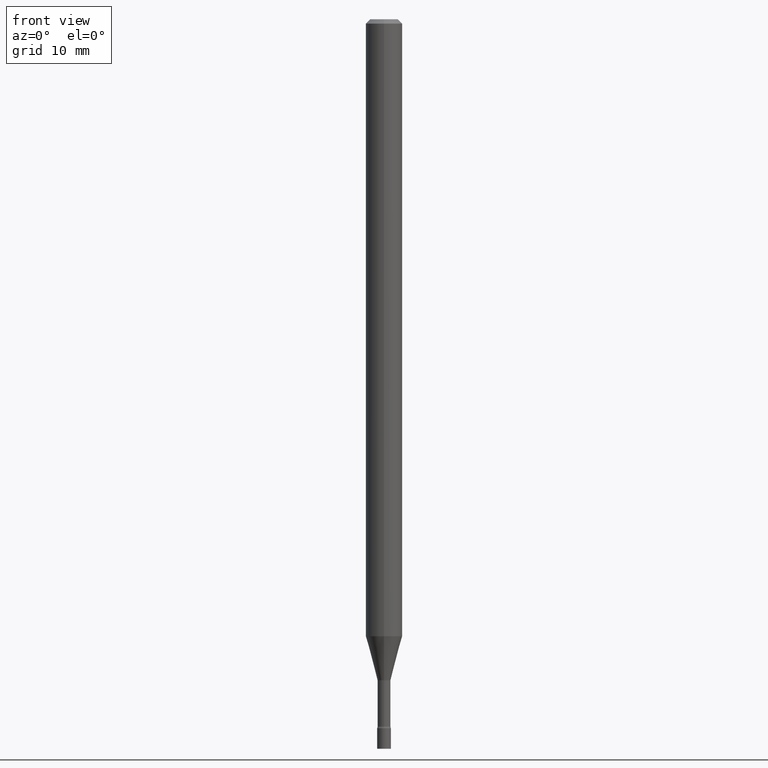
[diagram: clean part render]
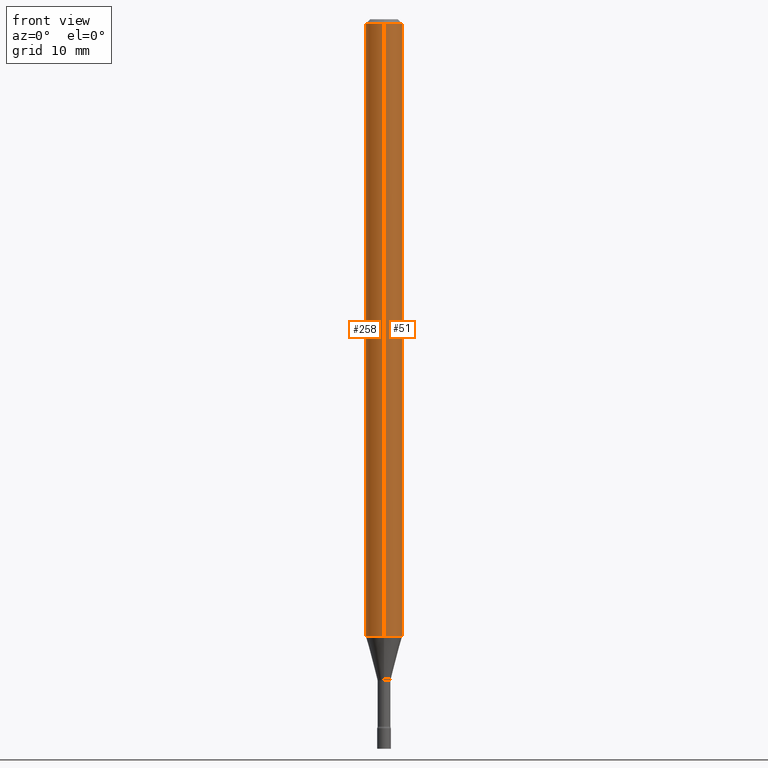
[diagram: same view with one multi-face feature highlighted, each face labeled with its STEP entity id]
A machine part, front view. The highlighted faces form ONE feature: a constant-radius fillet chain: 2 tangent blend faces with common blend radius 1.5875 mm. The faces share edges in the B-rep.
Their STEP definitions:
[1] entity #258 (Cylinder):
#4 = CARTESIAN_POINT ( 'NONE',  ( 4.440892098501140893E-16, 0.06249999999999258926, -2.114225147374217961 ) ) ;
#10 = FACE_OUTER_BOUND ( 'NONE', #309, .T. ) ;
#15 = EDGE_CURVE ( 'NONE', #400, #444, #18, .T. ) ;
#18 = LINE ( 'NONE', #461, #106 ) ;
#55 = DIRECTION ( 'NONE',  ( -2.445456510120580117E-29, 3.491498947507439183E-15, 1.000000000000000000 ) ) ;
#69 = ORIENTED_EDGE ( 'NONE', *, *, #483, .F. ) ;
#106 = VECTOR ( 'NONE', #176, 39.37007874015748143 ) ;
#125 = DIRECTION ( 'NONE',  ( -2.445456510120580117E-29, 3.491498947507439183E-15, 1.000000000000000000 ) ) ;
#129 = CIRCLE ( 'NONE', #161, 0.06250000000000000000 ) ;
#137 = DIRECTION ( 'NONE',  ( -6.982962677686265922E-15, -1.000000000000000000, 4.370956789862821150E-15 ) ) ;
#154 = ORIENTED_EDGE ( 'NONE', *, *, #15, .F. ) ;
#161 = AXIS2_PLACEMENT_3D ( 'NONE', #374, #501, #137 ) ;
#176 = DIRECTION ( 'NONE',  ( -2.445456510120580117E-29, 3.491498947507438789E-15, 1.000000000000000000 ) ) ;
#197 = AXIS2_PLACEMENT_3D ( 'NONE', #492, #125, #367 ) ;
#215 = AXIS2_PLACEMENT_3D ( 'NONE', #325, #55, #286 ) ;
#218 = EDGE_CURVE ( 'NONE', #400, #319, #129, .T. ) ;
#227 = ORIENTED_EDGE ( 'NONE', *, *, #218, .T. ) ;
#229 = DIRECTION ( 'NONE',  ( -2.445456510120580117E-29, 3.491498947507438789E-15, 1.000000000000000000 ) ) ;
#252 = VECTOR ( 'NONE', #229, 39.37007874015748143 ) ;
#258 = ADVANCED_FACE ( 'NONE', ( #10 ), #323, .T. ) ;
#261 = LINE ( 'NONE', #431, #252 ) ;
#286 = DIRECTION ( 'NONE',  ( -6.982962677686265922E-15, -1.000000000000000000, 3.483106191921935554E-15 ) ) ;
#303 = CARTESIAN_POINT ( 'NONE',  ( 4.440892098501146810E-16, 0.06249999999999995837, -0.01500000000000024751 ) ) ;
#309 = EDGE_LOOP ( 'NONE', ( #154, #227, #447, #69 ) ) ;
#319 = VERTEX_POINT ( 'NONE', #511 ) ;
#323 = CYLINDRICAL_SURFACE ( 'NONE', #197, 0.06250000000000000000 ) ;
#325 = CARTESIAN_POINT ( 'NONE',  ( 3.668184765180877041E-31, -5.237248421261169202E-17, -0.01500000000000003067 ) ) ;
#367 = DIRECTION ( 'NONE',  ( -6.982962677686265922E-15, -1.000000000000000000, 3.491498947507438789E-15 ) ) ;
#374 = CARTESIAN_POINT ( 'NONE',  ( 5.170245650506924061E-29, -7.381814876850842660E-15, -2.114225147374217961 ) ) ;
#386 = VERTEX_POINT ( 'NONE', #473 ) ;
#400 = VERTEX_POINT ( 'NONE', #4 ) ;
#431 = CARTESIAN_POINT ( 'NONE',  ( -4.364351673553916201E-16, -0.06250000000000000000, 2.182186842192149243E-16 ) ) ;
#444 = VERTEX_POINT ( 'NONE', #303 ) ;
#447 = ORIENTED_EDGE ( 'NONE', *, *, #459, .T. ) ;
#455 = CIRCLE ( 'NONE', #215, 0.06250000000000000000 ) ;
#459 = EDGE_CURVE ( 'NONE', #319, #386, #261, .T. ) ;
#461 = CARTESIAN_POINT ( 'NONE',  ( 4.440892098500625669E-16, 0.06250000000000000000, -2.182186842192149243E-16 ) ) ;
#473 = CARTESIAN_POINT ( 'NONE',  ( -4.364351673553912750E-16, -0.06250000000000005551, -0.01499999999999981209 ) ) ;
#483 = EDGE_CURVE ( 'NONE', #444, #386, #455, .T. ) ;
#492 = CARTESIAN_POINT ( 'NONE',  ( 0.000000000000000000, 0.000000000000000000, 0.000000000000000000 ) ) ;
#501 = DIRECTION ( 'NONE',  ( -2.445456510120580117E-29, 3.491498947507439183E-15, 1.000000000000000000 ) ) ;
#511 = CARTESIAN_POINT ( 'NONE',  ( -4.364351673553400976E-16, -0.06250000000000741074, -2.114225147374217517 ) ) ;
[2] entity #51 (Cylinder):
#4 = CARTESIAN_POINT ( 'NONE',  ( 4.440892098501140893E-16, 0.06249999999999258926, -2.114225147374217961 ) ) ;
#15 = EDGE_CURVE ( 'NONE', #400, #444, #18, .T. ) ;
#18 = LINE ( 'NONE', #461, #106 ) ;
#51 = ADVANCED_FACE ( 'NONE', ( #513 ), #200, .T. ) ;
#61 = AXIS2_PLACEMENT_3D ( 'NONE', #195, #311, #345 ) ;
#88 = CIRCLE ( 'NONE', #151, 0.06250000000000000000 ) ;
#99 = CIRCLE ( 'NONE', #188, 0.06250000000000000000 ) ;
#106 = VECTOR ( 'NONE', #176, 39.37007874015748143 ) ;
#109 = EDGE_CURVE ( 'NONE', #319, #400, #88, .T. ) ;
#127 = CARTESIAN_POINT ( 'NONE',  ( 5.170245650506924061E-29, -7.381814876850842660E-15, -2.114225147374217961 ) ) ;
#151 = AXIS2_PLACEMENT_3D ( 'NONE', #127, #217, #164 ) ;
#164 = DIRECTION ( 'NONE',  ( -6.982962677686265922E-15, -1.000000000000000000, 4.370956789862821150E-15 ) ) ;
#176 = DIRECTION ( 'NONE',  ( -2.445456510120580117E-29, 3.491498947507438789E-15, 1.000000000000000000 ) ) ;
#188 = AXIS2_PLACEMENT_3D ( 'NONE', #241, #364, #287 ) ;
#195 = CARTESIAN_POINT ( 'NONE',  ( 0.000000000000000000, 0.000000000000000000, 0.000000000000000000 ) ) ;
#200 = CYLINDRICAL_SURFACE ( 'NONE', #61, 0.06250000000000000000 ) ;
#217 = DIRECTION ( 'NONE',  ( -2.445456510120580117E-29, 3.491498947507439183E-15, 1.000000000000000000 ) ) ;
#229 = DIRECTION ( 'NONE',  ( -2.445456510120580117E-29, 3.491498947507438789E-15, 1.000000000000000000 ) ) ;
#233 = ORIENTED_EDGE ( 'NONE', *, *, #109, .T. ) ;
#241 = CARTESIAN_POINT ( 'NONE',  ( 3.668184765180877041E-31, -5.237248421261169202E-17, -0.01500000000000003067 ) ) ;
#252 = VECTOR ( 'NONE', #229, 39.37007874015748143 ) ;
#253 = EDGE_CURVE ( 'NONE', #386, #444, #99, .T. ) ;
#261 = LINE ( 'NONE', #431, #252 ) ;
#287 = DIRECTION ( 'NONE',  ( -6.982962677686265922E-15, -1.000000000000000000, 3.483106191921935554E-15 ) ) ;
#303 = CARTESIAN_POINT ( 'NONE',  ( 4.440892098501146810E-16, 0.06249999999999995837, -0.01500000000000024751 ) ) ;
#311 = DIRECTION ( 'NONE',  ( -2.445456510120580117E-29, 3.491498947507439183E-15, 1.000000000000000000 ) ) ;
#319 = VERTEX_POINT ( 'NONE', #511 ) ;
#344 = ORIENTED_EDGE ( 'NONE', *, *, #253, .F. ) ;
#345 = DIRECTION ( 'NONE',  ( -6.982962677686265922E-15, -1.000000000000000000, 3.491498947507438789E-15 ) ) ;
#364 = DIRECTION ( 'NONE',  ( -2.445456510120580117E-29, 3.491498947507439183E-15, 1.000000000000000000 ) ) ;
#386 = VERTEX_POINT ( 'NONE', #473 ) ;
#400 = VERTEX_POINT ( 'NONE', #4 ) ;
#431 = CARTESIAN_POINT ( 'NONE',  ( -4.364351673553916201E-16, -0.06250000000000000000, 2.182186842192149243E-16 ) ) ;
#444 = VERTEX_POINT ( 'NONE', #303 ) ;
#456 = ORIENTED_EDGE ( 'NONE', *, *, #15, .T. ) ;
#459 = EDGE_CURVE ( 'NONE', #319, #386, #261, .T. ) ;
#461 = CARTESIAN_POINT ( 'NONE',  ( 4.440892098500625669E-16, 0.06250000000000000000, -2.182186842192149243E-16 ) ) ;
#469 = EDGE_LOOP ( 'NONE', ( #233, #456, #344, #478 ) ) ;
#473 = CARTESIAN_POINT ( 'NONE',  ( -4.364351673553912750E-16, -0.06250000000000005551, -0.01499999999999981209 ) ) ;
#478 = ORIENTED_EDGE ( 'NONE', *, *, #459, .F. ) ;
#511 = CARTESIAN_POINT ( 'NONE',  ( -4.364351673553400976E-16, -0.06250000000000741074, -2.114225147374217517 ) ) ;
#513 = FACE_OUTER_BOUND ( 'NONE', #469, .T. ) ;